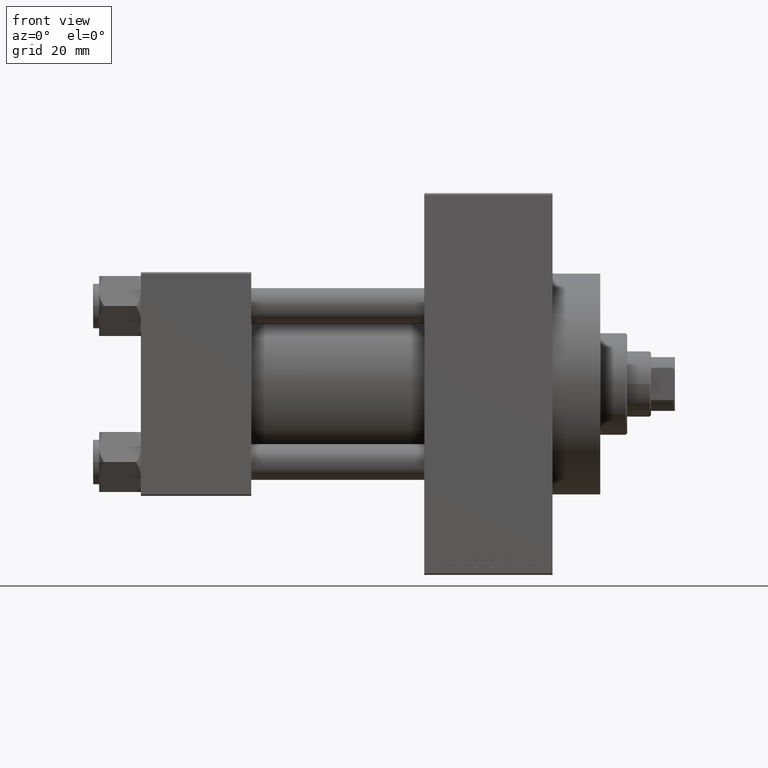
[diagram: clean part render]
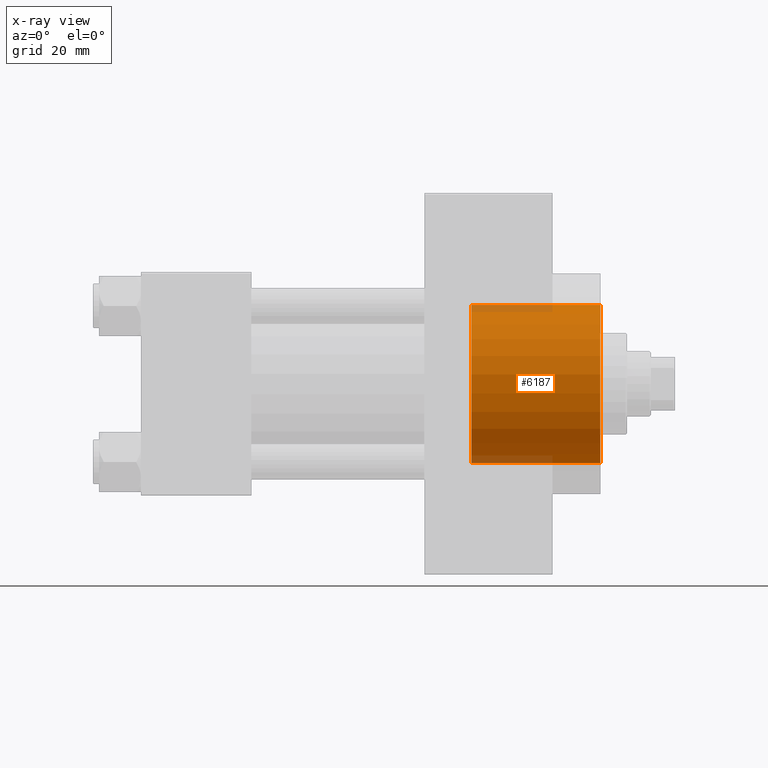
[diagram: x-ray — body ghosted, one internal face saturated and labeled with its STEP entity id]
A machine part, front view, then the same camera in x-ray: the body is ghosted and one INTERNAL B-rep face — a face not visible from any outside direction — is saturated and labeled: STEP entity #6187.
In plain terms, the highlighted cylindrical surface (partial cylindrical patch) has radius 26.5 mm, axis along (1, 0, 0).
Its self-contained STEP definition (entity closure, byte-faithful):
#1093 = AXIS2_PLACEMENT_3D ( 'NONE', #21574, #36143, #32557 ) ;
#1337 = ORIENTED_EDGE ( 'NONE', *, *, #17234, .T. ) ;
#1513 = EDGE_CURVE ( 'NONE', #22637, #11113, #11410, .T. ) ;
#1576 = ORIENTED_EDGE ( 'NONE', *, *, #29006, .T. ) ;
#3240 = CARTESIAN_POINT ( 'NONE',  ( 110.7400000000000375, 0.000000000000000000, 0.000000000000000000 ) ) ;
#3679 = VECTOR ( 'NONE', #35405, 1000.000000000000000 ) ;
#6187 = ADVANCED_FACE ( 'NONE', ( #15043 ), #43940, .F. ) ;
#7434 = ORIENTED_EDGE ( 'NONE', *, *, #1513, .F. ) ;
#11113 = VERTEX_POINT ( 'NONE', #30020 ) ;
#11410 = LINE ( 'NONE', #33120, #41065 ) ;
#11473 = CARTESIAN_POINT ( 'NONE',  ( 110.7400000000000375, 0.000000000000000000, 0.000000000000000000 ) ) ;
#12358 = LINE ( 'NONE', #34936, #3679 ) ;
#13424 = VERTEX_POINT ( 'NONE', #14207 ) ;
#14207 = CARTESIAN_POINT ( 'NONE',  ( 154.0000000000000284, 3.245314017740486554E-15, 26.50000000000000355 ) ) ;
#15043 = FACE_OUTER_BOUND ( 'NONE', #34654, .T. ) ;
#16141 = CIRCLE ( 'NONE', #23726, 26.50000000000000355 ) ;
#17234 = EDGE_CURVE ( 'NONE', #13424, #11113, #44542, .T. ) ;
#21574 = CARTESIAN_POINT ( 'NONE',  ( 154.0000000000000284, 0.000000000000000000, 0.000000000000000000 ) ) ;
#21594 = DIRECTION ( 'NONE',  ( 1.000000000000000000, 0.000000000000000000, 0.000000000000000000 ) ) ;
#22637 = VERTEX_POINT ( 'NONE', #39530 ) ;
#23726 = AXIS2_PLACEMENT_3D ( 'NONE', #3240, #21594, #24697 ) ;
#24697 = DIRECTION ( 'NONE',  ( 0.000000000000000000, 0.000000000000000000, -1.000000000000000000 ) ) ;
#25543 = DIRECTION ( 'NONE',  ( 0.000000000000000000, 0.000000000000000000, -1.000000000000000000 ) ) ;
#25969 = AXIS2_PLACEMENT_3D ( 'NONE', #11473, #29610, #25543 ) ;
#26852 = VERTEX_POINT ( 'NONE', #29161 ) ;
#29006 = EDGE_CURVE ( 'NONE', #26852, #13424, #12358, .T. ) ;
#29161 = CARTESIAN_POINT ( 'NONE',  ( 110.7400000000000375, 3.245314017740486554E-15, 26.50000000000000355 ) ) ;
#29610 = DIRECTION ( 'NONE',  ( 1.000000000000000000, -0.000000000000000000, -0.000000000000000000 ) ) ;
#30020 = CARTESIAN_POINT ( 'NONE',  ( 154.0000000000000284, 0.000000000000000000, -26.50000000000000355 ) ) ;
#32557 = DIRECTION ( 'NONE',  ( 0.000000000000000000, 0.000000000000000000, -1.000000000000000000 ) ) ;
#33120 = CARTESIAN_POINT ( 'NONE',  ( 110.7400000000000375, 0.000000000000000000, -26.50000000000000355 ) ) ;
#34654 = EDGE_LOOP ( 'NONE', ( #43046, #1576, #1337, #7434 ) ) ;
#34936 = CARTESIAN_POINT ( 'NONE',  ( 110.7400000000000375, 3.245314017740486554E-15, 26.50000000000000355 ) ) ;
#35405 = DIRECTION ( 'NONE',  ( 1.000000000000000000, -0.000000000000000000, -0.000000000000000000 ) ) ;
#36143 = DIRECTION ( 'NONE',  ( 1.000000000000000000, 0.000000000000000000, 0.000000000000000000 ) ) ;
#39530 = CARTESIAN_POINT ( 'NONE',  ( 110.7400000000000375, 0.000000000000000000, -26.50000000000000355 ) ) ;
#41065 = VECTOR ( 'NONE', #43651, 1000.000000000000000 ) ;
#41162 = EDGE_CURVE ( 'NONE', #26852, #22637, #16141, .T. ) ;
#43046 = ORIENTED_EDGE ( 'NONE', *, *, #41162, .F. ) ;
#43651 = DIRECTION ( 'NONE',  ( 1.000000000000000000, -0.000000000000000000, -0.000000000000000000 ) ) ;
#43940 = CYLINDRICAL_SURFACE ( 'NONE', #25969, 26.50000000000000355 ) ;
#44542 = CIRCLE ( 'NONE', #1093, 26.50000000000000355 ) ;